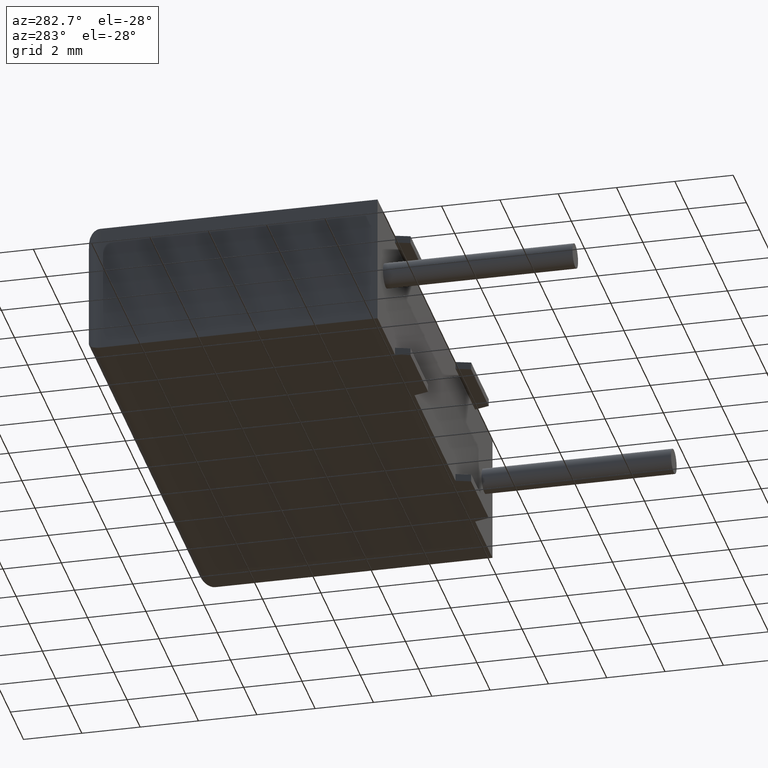
[diagram: clean part render]
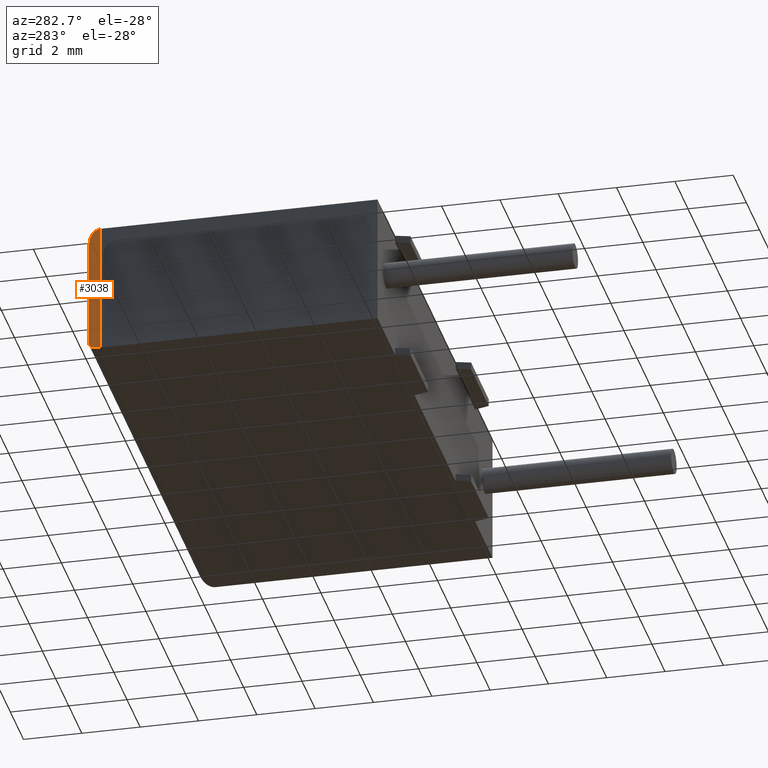
[diagram: same view with one face highlighted and labeled with its STEP entity id]
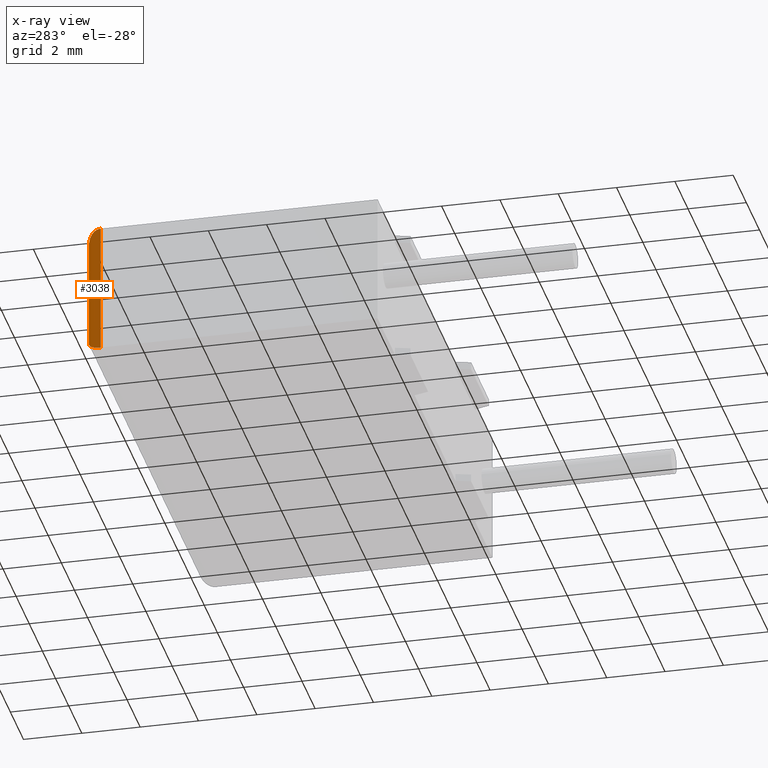
[diagram: x-ray of the same camera — body ghosted, the highlighted face saturated]
A machine part, auxiliary view. The second image highlights one B-rep face of the part: STEP entity #3038.
The next image is the same camera in x-ray: the body ghosted, the highlighted face saturated — about 0% of this face is hidden behind the body in this view.
In plain terms, the highlighted cylindrical surface (edge-blend (fillet) strip) has radius 0.5 mm, axis along (0, 0, -1).
Its self-contained STEP definition (entity closure, byte-faithful):
#17 =( BOUNDED_CURVE ( )  B_SPLINE_CURVE ( 3, ( #836, #2858, #1814, #1089 ),
 .UNSPECIFIED., .F., .F. ) 
 B_SPLINE_CURVE_WITH_KNOTS ( ( 4, 4 ),
 ( 1.570796326794896800, 3.141592653589793100 ),
 .UNSPECIFIED. ) 
 CURVE ( )  GEOMETRIC_REPRESENTATION_ITEM ( )  RATIONAL_B_SPLINE_CURVE ( ( 1.000000000000000000, 0.8047378541243650500, 0.8047378541243650500, 1.000000000000000000 ) ) 
 REPRESENTATION_ITEM ( '' )  );
#58 = VECTOR ( 'NONE', #1031, 1000.000000000000000 ) ;
#225 = CARTESIAN_POINT ( 'NONE',  ( 0.0000000000000000000, 9.500000000000000000, 0.0000000000000000000 ) ) ;
#233 = CARTESIAN_POINT ( 'NONE',  ( 0.5000000000000000000, 10.00000000000000000, 0.4999999999999995600 ) ) ;
#340 = LINE ( 'NONE', #1643, #2897 ) ;
#384 = DIRECTION ( 'NONE',  ( 0.0000000000000000000, 0.0000000000000000000, -1.000000000000000000 ) ) ;
#420 = EDGE_CURVE ( 'NONE', #1073, #2598, #17, .T. ) ;
#633 = CARTESIAN_POINT ( 'NONE',  ( 0.5000000000000000000, 9.500000000000000000, 4.500000000000000000 ) ) ;
#650 = CARTESIAN_POINT ( 'NONE',  ( 0.5000000000000000000, 10.00000000000000000, 0.4999999999999995600 ) ) ;
#667 = VERTEX_POINT ( 'NONE', #650 ) ;
#728 = CARTESIAN_POINT ( 'NONE',  ( 7.255114295736445100E-017, 9.792893218813452100, -3.611297260368373200E-016 ) ) ;
#836 = CARTESIAN_POINT ( 'NONE',  ( 0.5000000000000000000, 10.00000000000000000, 4.000000000000000000 ) ) ;
#928 = CARTESIAN_POINT ( 'NONE',  ( 0.0000000000000000000, 9.500000000000000000, 4.500000000000000000 ) ) ;
#1031 = DIRECTION ( 'NONE',  ( 0.0000000000000000000, 0.0000000000000000000, -1.000000000000000000 ) ) ;
#1043 =( BOUNDED_CURVE ( )  B_SPLINE_CURVE ( 3, ( #225, #728, #1739, #233 ),
 .UNSPECIFIED., .F., .T. ) 
 B_SPLINE_CURVE_WITH_KNOTS ( ( 4, 4 ),
 ( 3.141592653589793100, 4.712388980384689700 ),
 .UNSPECIFIED. ) 
 CURVE ( )  GEOMETRIC_REPRESENTATION_ITEM ( )  RATIONAL_B_SPLINE_CURVE ( ( 1.000000000000000000, 0.8047378541243649400, 0.8047378541243649400, 1.000000000000000000 ) ) 
 REPRESENTATION_ITEM ( '' )  );
#1073 = VERTEX_POINT ( 'NONE', #1308 ) ;
#1089 = CARTESIAN_POINT ( 'NONE',  ( 0.0000000000000000000, 9.500000000000000000, 4.500000000000000000 ) ) ;
#1308 = CARTESIAN_POINT ( 'NONE',  ( 0.5000000000000000000, 10.00000000000000000, 4.000000000000000000 ) ) ;
#1312 = AXIS2_PLACEMENT_3D ( 'NONE', #633, #384, #2113 ) ;
#1610 = ORIENTED_EDGE ( 'NONE', *, *, #2118, .F. ) ;
#1643 = CARTESIAN_POINT ( 'NONE',  ( 0.5000000000000000000, 10.00000000000000000, 4.500000000000000000 ) ) ;
#1739 = CARTESIAN_POINT ( 'NONE',  ( 0.2071067811865474900, 10.00000000000000000, 0.2071067811865470700 ) ) ;
#1814 = CARTESIAN_POINT ( 'NONE',  ( 1.442892915397364600E-016, 9.792893218813452100, 4.500000000000000000 ) ) ;
#1816 = FACE_OUTER_BOUND ( 'NONE', #2116, .T. ) ;
#1878 = ORIENTED_EDGE ( 'NONE', *, *, #2957, .F. ) ;
#2113 = DIRECTION ( 'NONE',  ( -1.000000000000000000, 0.0000000000000000000, 0.0000000000000000000 ) ) ;
#2116 = EDGE_LOOP ( 'NONE', ( #2159, #1878, #3041, #1610 ) ) ;
#2118 = EDGE_CURVE ( 'NONE', #667, #1073, #340, .T. ) ;
#2159 = ORIENTED_EDGE ( 'NONE', *, *, #2771, .F. ) ;
#2598 = VERTEX_POINT ( 'NONE', #928 ) ;
#2650 = DIRECTION ( 'NONE',  ( -0.0000000000000000000, -0.0000000000000000000, 1.000000000000000000 ) ) ;
#2771 = EDGE_CURVE ( 'NONE', #3024, #667, #1043, .T. ) ;
#2779 = CARTESIAN_POINT ( 'NONE',  ( 0.0000000000000000000, 9.500000000000000000, 4.500000000000000000 ) ) ;
#2858 = CARTESIAN_POINT ( 'NONE',  ( 0.2071067811865475200, 10.00000000000000400, 4.292893218813451200 ) ) ;
#2876 = CARTESIAN_POINT ( 'NONE',  ( 0.0000000000000000000, 9.500000000000000000, 0.0000000000000000000 ) ) ;
#2889 = LINE ( 'NONE', #2779, #58 ) ;
#2897 = VECTOR ( 'NONE', #2650, 1000.000000000000000 ) ;
#2957 = EDGE_CURVE ( 'NONE', #2598, #3024, #2889, .T. ) ;
#3024 = VERTEX_POINT ( 'NONE', #2876 ) ;
#3038 = ADVANCED_FACE ( 'NONE', ( #1816 ), #3234, .T. ) ;
#3041 = ORIENTED_EDGE ( 'NONE', *, *, #420, .F. ) ;
#3234 = CYLINDRICAL_SURFACE ( 'NONE', #1312, 0.5000000000000000000 ) ;